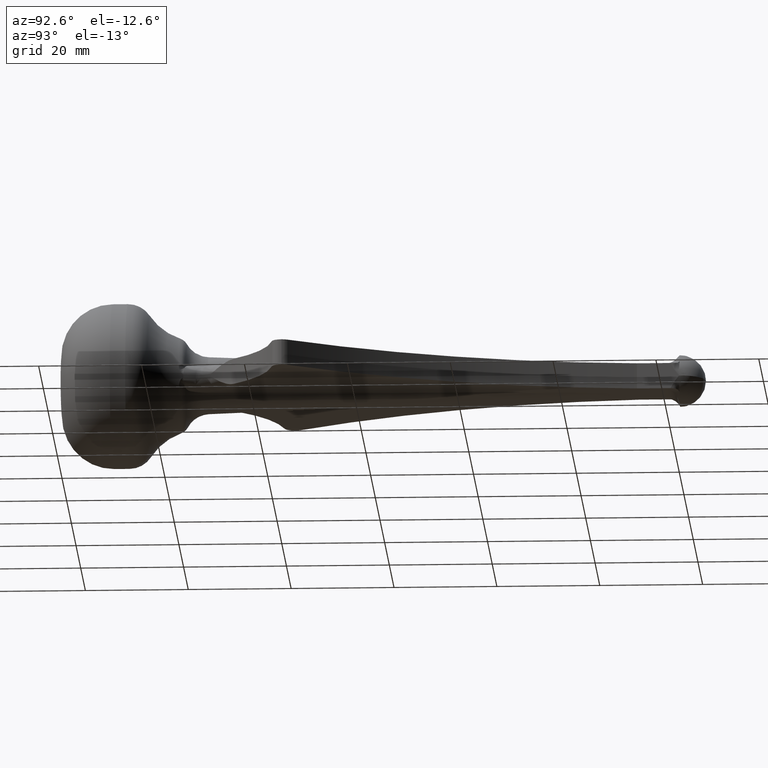
[diagram: clean part render]
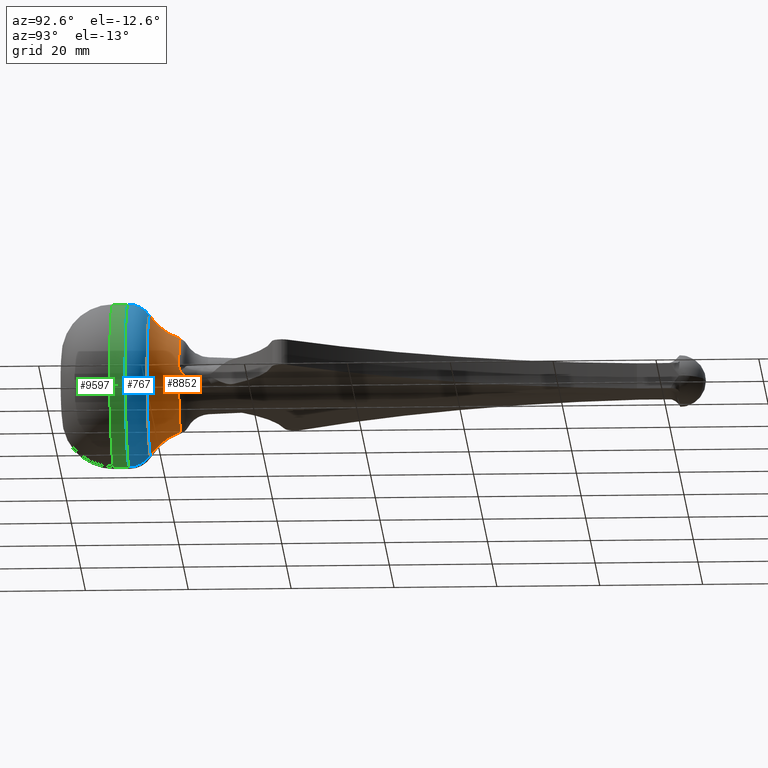
[diagram: same view with three faces highlighted in distinct colors, each labeled with its STEP entity id]
A machine part, auxiliary view with three faces highlighted in distinct colors.
Their STEP definitions:

[orange] entity #8852 — the highlighted toroidal blend (fillet) surface has major radius 20.165 mm and minor (blend) radius 11.5873 mm.
#6 = EDGE_CURVE ( 'NONE', #10651, #2244, #5900, .T. ) ;
#7 = DIRECTION ( 'NONE',  ( 1.000000000000000000, 0.0000000000000000000, -1.224646799147353200E-016 ) ) ;
#28 = ORIENTED_EDGE ( 'NONE', *, *, #3453, .T. ) ;
#55 = CIRCLE ( 'NONE', #10272, 13.76266673960028100 ) ;
#122 = CARTESIAN_POINT ( 'NONE',  ( 8.885873797665523100, 23.08720144099068600, -2.356469528750635000 ) ) ;
#367 = CARTESIAN_POINT ( 'NONE',  ( 8.941719196711911600, 23.90555836322825600, 0.3439355426646191200 ) ) ;
#676 = CIRCLE ( 'NONE', #3830, 11.58731518288763600 ) ;
#693 = CIRCLE ( 'NONE', #1182, 11.58731518288763600 ) ;
#775 = ORIENTED_EDGE ( 'NONE', *, *, #7452, .T. ) ;
#785 = EDGE_CURVE ( 'NONE', #7063, #5216, #55, .T. ) ;
#1182 = AXIS2_PLACEMENT_3D ( 'NONE', #7235, #1813, #8146 ) ;
#1228 = CARTESIAN_POINT ( 'NONE',  ( 8.918659669156037100, 23.99999999999999600, 0.3181611225529120700 ) ) ;
#1270 = CARTESIAN_POINT ( 'NONE',  ( 8.971983921116132500, 23.77932363652176000, 0.4209636316943460900 ) ) ;
#1813 = DIRECTION ( 'NONE',  ( -1.000000000000000000, 0.0000000000000000000, 0.0000000000000000000 ) ) ;
#1970 = DIRECTION ( 'NONE',  ( -0.0000000000000000000, -1.000000000000000000, -0.0000000000000000000 ) ) ;
#2004 = DIRECTION ( 'NONE',  ( 0.0000000000000000000, 0.0000000000000000000, -1.000000000000000000 ) ) ;
#2208 = CARTESIAN_POINT ( 'NONE',  ( 9.012877821960300300, 23.59990351548576400, 0.5915316654796204400 ) ) ;
#2244 = VERTEX_POINT ( 'NONE', #10386 ) ;
#3119 = CARTESIAN_POINT ( 'NONE',  ( 9.056079184509602700, 23.33884154773874900, 1.012000436484756300 ) ) ;
#3397 = CARTESIAN_POINT ( 'NONE',  ( 1.685440577038321800E-015, 17.15495492610014900, 13.76266673960027700 ) ) ;
#3412 = VERTEX_POINT ( 'NONE', #1228 ) ;
#3453 = EDGE_CURVE ( 'NONE', #3412, #3787, #9212, .T. ) ;
#3661 = ORIENTED_EDGE ( 'NONE', *, *, #7736, .T. ) ;
#3748 = EDGE_LOOP ( 'NONE', ( #6827, #7266, #6503, #3661, #11083, #8203, #28, #775 ) ) ;
#3787 = VERTEX_POINT ( 'NONE', #5630 ) ;
#3830 = AXIS2_PLACEMENT_3D ( 'NONE', #5464, #7, #6371 ) ;
#4059 = CARTESIAN_POINT ( 'NONE',  ( 9.033472582357175500, 23.16011975677102800, 1.579945031000917800 ) ) ;
#4252 = EDGE_CURVE ( 'NONE', #2244, #3412, #10546, .T. ) ;
#4284 = AXIS2_PLACEMENT_3D ( 'NONE', #7388, #1970, #8311 ) ;
#4293 = DIRECTION ( 'NONE',  ( -0.0000000000000000000, -1.000000000000000000, -0.0000000000000000000 ) ) ;
#4411 = TOROIDAL_SURFACE ( 'NONE', #10253, 20.16504479100604300, 11.58731518288763600 ) ;
#4466 = AXIS2_PLACEMENT_3D ( 'NONE', #10623, #5458, #11453 ) ;
#4736 = DIRECTION ( 'NONE',  ( -0.0000000000000000000, -1.000000000000000000, -0.0000000000000000000 ) ) ;
#4792 = CARTESIAN_POINT ( 'NONE',  ( 0.0000000000000000000, 17.15495492610014900, -13.76266673960027700 ) ) ;
#4956 = CARTESIAN_POINT ( 'NONE',  ( 8.937033132351908500, 23.08720144099069000, 2.163555771092899900 ) ) ;
#5216 = VERTEX_POINT ( 'NONE', #4792 ) ;
#5236 = CIRCLE ( 'NONE', #4284, 9.193024626746586500 ) ;
#5458 = DIRECTION ( 'NONE',  ( -0.0000000000000000000, -1.000000000000000000, -0.0000000000000000000 ) ) ;
#5464 = CARTESIAN_POINT ( 'NONE',  ( 2.469505755796855800E-015, 26.81287542869572600, 20.16504479100604300 ) ) ;
#5489 = DIRECTION ( 'NONE',  ( 0.0000000000000000000, 0.0000000000000000000, 1.000000000000000000 ) ) ;
#5539 = DIRECTION ( 'NONE',  ( 0.0000000000000000000, 1.000000000000000000, 0.0000000000000000000 ) ) ;
#5541 = CARTESIAN_POINT ( 'NONE',  ( 0.0000000000000000000, 17.15495492610014900, 0.0000000000000000000 ) ) ;
#5630 = CARTESIAN_POINT ( 'NONE',  ( 8.885873797667464700, 23.08720144099065100, 2.356469528743372800 ) ) ;
#5900 = B_SPLINE_CURVE_WITH_KNOTS ( 'NONE', 3,
 ( #8152, #8261, #8377, #8258, #8246, #8234, #8224, #8179, #8190, #8220, #8207, #8108, #8142, #8166 ),
 .UNSPECIFIED., .F., .F.,
 ( 4, 2, 2, 2, 2, 2, 4 ),
 ( 0.0000000000000000000, 0.0005983273841766316500, 0.001196654768353262600, 0.001794982152529893800, 0.002094145844618212100, 0.002243727690662367200, 0.002393309536706522300 ),
 .UNSPECIFIED. ) ;
#6371 = DIRECTION ( 'NONE',  ( -1.224646799147353500E-016, 0.0000000000000000000, -1.000000000000000000 ) ) ;
#6503 = ORIENTED_EDGE ( 'NONE', *, *, #7365, .T. ) ;
#6686 = AXIS2_PLACEMENT_3D ( 'NONE', #9548, #4293, #10364 ) ;
#6730 = CARTESIAN_POINT ( 'NONE',  ( 8.962404263562195400, 23.81956761544567400, 0.3919812710589184500 ) ) ;
#6827 = ORIENTED_EDGE ( 'NONE', *, *, #8652, .F. ) ;
#7063 = VERTEX_POINT ( 'NONE', #3397 ) ;
#7235 = CARTESIAN_POINT ( 'NONE',  ( 0.0000000000000000000, 26.81287542869572600, -20.16504479100604300 ) ) ;
#7266 = ORIENTED_EDGE ( 'NONE', *, *, #785, .T. ) ;
#7365 = EDGE_CURVE ( 'NONE', #5216, #10401, #693, .T. ) ;
#7388 = CARTESIAN_POINT ( 'NONE',  ( 0.0000000000000000000, 23.08720144099065100, 0.0000000000000000000 ) ) ;
#7452 = EDGE_CURVE ( 'NONE', #3787, #10240, #5236, .T. ) ;
#7569 = CARTESIAN_POINT ( 'NONE',  ( 8.930667435074074200, 23.95128460649568700, 0.3235019602229927100 ) ) ;
#7611 = CARTESIAN_POINT ( 'NONE',  ( 8.998337914112205700, 23.66612744645895100, 0.5162185066170290600 ) ) ;
#7736 = EDGE_CURVE ( 'NONE', #10401, #10651, #11024, .T. ) ;
#8108 = CARTESIAN_POINT ( 'NONE',  ( 8.941704535160679900, 23.90561679870687000, -0.3439421123707872600 ) ) ;
#8142 = CARTESIAN_POINT ( 'NONE',  ( 8.930526227416159200, 23.95185641049453900, -0.3234473615455704700 ) ) ;
#8146 = DIRECTION ( 'NONE',  ( 0.0000000000000000000, 0.0000000000000000000, 1.000000000000000000 ) ) ;
#8152 = CARTESIAN_POINT ( 'NONE',  ( 8.885873797665523100, 23.08720144099068600, -2.356469528750635000 ) ) ;
#8166 = CARTESIAN_POINT ( 'NONE',  ( 8.918659669156037100, 23.99999999999999600, -0.3181611225529122900 ) ) ;
#8179 = CARTESIAN_POINT ( 'NONE',  ( 9.012688472108228800, 23.60082714964636400, -0.5903667414277680200 ) ) ;
#8190 = CARTESIAN_POINT ( 'NONE',  ( 8.998147241625924100, 23.66696851101153600, -0.5153878817247501400 ) ) ;
#8203 = ORIENTED_EDGE ( 'NONE', *, *, #4252, .T. ) ;
#8207 = CARTESIAN_POINT ( 'NONE',  ( 8.962236595814626800, 23.82026712639986200, -0.3915515596212859600 ) ) ;
#8220 = CARTESIAN_POINT ( 'NONE',  ( 8.971835888917169700, 23.77994827111262300, -0.4205002900955824300 ) ) ;
#8224 = CARTESIAN_POINT ( 'NONE',  ( 9.046514190846798100, 23.42558539799858900, -0.8309049424322915200 ) ) ;
#8234 = CARTESIAN_POINT ( 'NONE',  ( 9.056069037639268500, 23.33896420935823500, -1.011732576933815900 ) ) ;
#8246 = CARTESIAN_POINT ( 'NONE',  ( 9.049564010375366500, 23.20598295220955300, -1.385902755040101100 ) ) ;
#8258 = CARTESIAN_POINT ( 'NONE',  ( 9.033362387937957600, 23.16006276147027900, -1.580537984538229200 ) ) ;
#8261 = CARTESIAN_POINT ( 'NONE',  ( 8.937036048161090200, 23.08720144099035200, -2.163544776038833600 ) ) ;
#8311 = DIRECTION ( 'NONE',  ( -1.776356839400250500E-015, 0.0000000000000000000, 1.000000000000000000 ) ) ;
#8377 = CARTESIAN_POINT ( 'NONE',  ( 8.977282515049207500, 23.10086973359258200, -1.967824308700696100 ) ) ;
#8516 = CARTESIAN_POINT ( 'NONE',  ( 9.046459984554651600, 23.42575072095533200, 0.8308852427715052200 ) ) ;
#8652 = EDGE_CURVE ( 'NONE', #7063, #10240, #676, .T. ) ;
#8663 = CARTESIAN_POINT ( 'NONE',  ( 0.0000000000000000000, 23.08720144099065100, -9.193024626746586500 ) ) ;
#8852 = ADVANCED_FACE ( 'NONE', ( #11282 ), #4411, .F. ) ;
#9212 = B_SPLINE_CURVE_WITH_KNOTS ( 'NONE', 3,
 ( #9269, #7569, #367, #6730, #1270, #7611, #2208, #8516, #3119, #9334, #4059, #10157, #4956, #10979 ),
 .UNSPECIFIED., .F., .F.,
 ( 4, 2, 2, 2, 2, 2, 4 ),
 ( -1.195679379339184600E-005, 0.0001394139403044374400, 0.0002907846744022667100, 0.0005935261425979253700, 0.001199009078989249800, 0.001804492015380574000, 0.002409974951771898800 ),
 .UNSPECIFIED. ) ;
#9269 = CARTESIAN_POINT ( 'NONE',  ( 8.918659669156037100, 23.99999999999999600, 0.3181611225529120700 ) ) ;
#9334 = CARTESIAN_POINT ( 'NONE',  ( 9.049542421045334400, 23.20587227706673900, 1.386291572264762600 ) ) ;
#9336 = CARTESIAN_POINT ( 'NONE',  ( 1.125820818362799700E-015, 23.08720144099065100, 9.193024626746586500 ) ) ;
#9548 = CARTESIAN_POINT ( 'NONE',  ( 0.0000000000000000000, 23.08720144099065100, 0.0000000000000000000 ) ) ;
#10157 = CARTESIAN_POINT ( 'NONE',  ( 8.976999482468940500, 23.10063048728999700, 1.969610363309829400 ) ) ;
#10240 = VERTEX_POINT ( 'NONE', #9336 ) ;
#10253 = AXIS2_PLACEMENT_3D ( 'NONE', #10774, #4736, #2004 ) ;
#10272 = AXIS2_PLACEMENT_3D ( 'NONE', #5541, #5539, #5489 ) ;
#10364 = DIRECTION ( 'NONE',  ( 0.0000000000000000000, 0.0000000000000000000, 1.000000000000000000 ) ) ;
#10386 = CARTESIAN_POINT ( 'NONE',  ( 8.918659669156037100, 23.99999999999999600, -0.3181611225529122900 ) ) ;
#10401 = VERTEX_POINT ( 'NONE', #8663 ) ;
#10546 = CIRCLE ( 'NONE', #4466, 8.924332848685921200 ) ;
#10623 = CARTESIAN_POINT ( 'NONE',  ( 0.0000000000000000000, 23.99999999999999600, 0.0000000000000000000 ) ) ;
#10651 = VERTEX_POINT ( 'NONE', #122 ) ;
#10774 = CARTESIAN_POINT ( 'NONE',  ( 0.0000000000000000000, 26.81287542869572600, 0.0000000000000000000 ) ) ;
#10979 = CARTESIAN_POINT ( 'NONE',  ( 8.885873797667464700, 23.08720144099065100, 2.356469528743372800 ) ) ;
#11024 = CIRCLE ( 'NONE', #6686, 9.193024626746586500 ) ;
#11083 = ORIENTED_EDGE ( 'NONE', *, *, #6, .T. ) ;
#11282 = FACE_OUTER_BOUND ( 'NONE', #3748, .T. ) ;
#11453 = DIRECTION ( 'NONE',  ( 0.0000000000000000000, 0.0000000000000000000, -1.000000000000000000 ) ) ;

[blue] entity #767 — the highlighted toroidal blend (fillet) surface has major radius 11 mm and minor (blend) radius 5 mm.
#55 = CIRCLE ( 'NONE', #10272, 13.76266673960028100 ) ;
#256 = CIRCLE ( 'NONE', #6619, 4.999999999999999100 ) ;
#336 = CARTESIAN_POINT ( 'NONE',  ( 0.0000000000000000000, 12.98750096883720000, 0.0000000000000000000 ) ) ;
#767 = ADVANCED_FACE ( 'NONE', ( #2502 ), #7298, .T. ) ;
#785 = EDGE_CURVE ( 'NONE', #7063, #5216, #55, .T. ) ;
#860 = CARTESIAN_POINT ( 'NONE',  ( 0.0000000000000000000, 12.98750096883720000, 16.00000000000000000 ) ) ;
#900 = DIRECTION ( 'NONE',  ( -1.000000000000000000, 0.0000000000000000000, 0.0000000000000000000 ) ) ;
#1233 = DIRECTION ( 'NONE',  ( 0.0000000000000000000, 0.0000000000000000000, 1.000000000000000000 ) ) ;
#1329 = ORIENTED_EDGE ( 'NONE', *, *, #9253, .F. ) ;
#2122 = CIRCLE ( 'NONE', #4521, 4.999999999999999100 ) ;
#2293 = CIRCLE ( 'NONE', #2632, 16.00000000000000000 ) ;
#2502 = FACE_OUTER_BOUND ( 'NONE', #7732, .T. ) ;
#2632 = AXIS2_PLACEMENT_3D ( 'NONE', #336, #6692, #1233 ) ;
#3397 = CARTESIAN_POINT ( 'NONE',  ( 1.685440577038321800E-015, 17.15495492610014900, 13.76266673960027700 ) ) ;
#3486 = DIRECTION ( 'NONE',  ( 1.000000000000000000, -0.0000000000000000000, 1.224646799147353200E-016 ) ) ;
#3572 = ORIENTED_EDGE ( 'NONE', *, *, #3931, .F. ) ;
#3931 = EDGE_CURVE ( 'NONE', #10707, #4950, #2293, .T. ) ;
#4521 = AXIS2_PLACEMENT_3D ( 'NONE', #8833, #3486, #9658 ) ;
#4792 = CARTESIAN_POINT ( 'NONE',  ( 0.0000000000000000000, 17.15495492610014900, -13.76266673960027700 ) ) ;
#4846 = CARTESIAN_POINT ( 'NONE',  ( 1.959434878635765100E-015, 12.98750096883720000, -16.00000000000000000 ) ) ;
#4950 = VERTEX_POINT ( 'NONE', #860 ) ;
#5216 = VERTEX_POINT ( 'NONE', #4792 ) ;
#5489 = DIRECTION ( 'NONE',  ( 0.0000000000000000000, 0.0000000000000000000, 1.000000000000000000 ) ) ;
#5539 = DIRECTION ( 'NONE',  ( 0.0000000000000000000, 1.000000000000000000, 0.0000000000000000000 ) ) ;
#5541 = CARTESIAN_POINT ( 'NONE',  ( 0.0000000000000000000, 17.15495492610014900, 0.0000000000000000000 ) ) ;
#5591 = DIRECTION ( 'NONE',  ( 0.0000000000000000000, 0.0000000000000000000, 1.000000000000000000 ) ) ;
#5657 = CARTESIAN_POINT ( 'NONE',  ( 0.0000000000000000000, 12.98750096883720000, 0.0000000000000000000 ) ) ;
#5672 = DIRECTION ( 'NONE',  ( 0.0000000000000000000, 1.000000000000000000, 0.0000000000000000000 ) ) ;
#6349 = CARTESIAN_POINT ( 'NONE',  ( 0.0000000000000000000, 12.98750096883720000, 11.00000000000000900 ) ) ;
#6619 = AXIS2_PLACEMENT_3D ( 'NONE', #6349, #900, #7249 ) ;
#6692 = DIRECTION ( 'NONE',  ( -0.0000000000000000000, -1.000000000000000000, -0.0000000000000000000 ) ) ;
#6897 = ORIENTED_EDGE ( 'NONE', *, *, #785, .F. ) ;
#7063 = VERTEX_POINT ( 'NONE', #3397 ) ;
#7082 = EDGE_CURVE ( 'NONE', #10707, #5216, #2122, .T. ) ;
#7249 = DIRECTION ( 'NONE',  ( 0.0000000000000000000, 0.0000000000000000000, 1.000000000000000000 ) ) ;
#7298 = TOROIDAL_SURFACE ( 'NONE', #11391, 11.00000000000000900, 5.000000000000000000 ) ;
#7732 = EDGE_LOOP ( 'NONE', ( #3572, #8834, #6897, #1329 ) ) ;
#8834 = ORIENTED_EDGE ( 'NONE', *, *, #7082, .T. ) ;
#8833 = CARTESIAN_POINT ( 'NONE',  ( 1.347111479062089600E-015, 12.98750096883720000, -11.00000000000000900 ) ) ;
#9253 = EDGE_CURVE ( 'NONE', #4950, #7063, #256, .T. ) ;
#9658 = DIRECTION ( 'NONE',  ( 1.224646799147353500E-016, 0.0000000000000000000, -1.000000000000000000 ) ) ;
#10272 = AXIS2_PLACEMENT_3D ( 'NONE', #5541, #5539, #5489 ) ;
#10707 = VERTEX_POINT ( 'NONE', #4846 ) ;
#11391 = AXIS2_PLACEMENT_3D ( 'NONE', #5657, #5672, #5591 ) ;

[green] entity #9597 — the highlighted cylindrical surface (partial cylindrical patch) has radius 16 mm, axis along (-0, 1, -0).
#177 = ORIENTED_EDGE ( 'NONE', *, *, #3931, .T. ) ;
#336 = CARTESIAN_POINT ( 'NONE',  ( 0.0000000000000000000, 12.98750096883720000, 0.0000000000000000000 ) ) ;
#508 = CARTESIAN_POINT ( 'NONE',  ( 1.959434878635765100E-015, 10.00000000000000000, -16.00000000000000000 ) ) ;
#860 = CARTESIAN_POINT ( 'NONE',  ( 0.0000000000000000000, 12.98750096883720000, 16.00000000000000000 ) ) ;
#1120 = CARTESIAN_POINT ( 'NONE',  ( 0.0000000000000000000, 0.0000000000000000000, 16.00000000000000000 ) ) ;
#1233 = DIRECTION ( 'NONE',  ( 0.0000000000000000000, 0.0000000000000000000, 1.000000000000000000 ) ) ;
#1239 = CARTESIAN_POINT ( 'NONE',  ( 0.0000000000000000000, 0.0000000000000000000, 0.0000000000000000000 ) ) ;
#1373 = VECTOR ( 'NONE', #7467, 1000.000000000000000 ) ;
#1670 = LINE ( 'NONE', #1120, #1373 ) ;
#2033 = ORIENTED_EDGE ( 'NONE', *, *, #10126, .F. ) ;
#2086 = VERTEX_POINT ( 'NONE', #508 ) ;
#2129 = CARTESIAN_POINT ( 'NONE',  ( 1.959434878635765100E-015, 0.0000000000000000000, -16.00000000000000000 ) ) ;
#2281 = VECTOR ( 'NONE', #3980, 1000.000000000000000 ) ;
#2293 = CIRCLE ( 'NONE', #2632, 16.00000000000000000 ) ;
#2632 = AXIS2_PLACEMENT_3D ( 'NONE', #336, #6692, #1233 ) ;
#3378 = EDGE_CURVE ( 'NONE', #2086, #10707, #4726, .T. ) ;
#3931 = EDGE_CURVE ( 'NONE', #10707, #4950, #2293, .T. ) ;
#3980 = DIRECTION ( 'NONE',  ( -0.0000000000000000000, 1.000000000000000000, -0.0000000000000000000 ) ) ;
#4218 = VERTEX_POINT ( 'NONE', #7774 ) ;
#4726 = LINE ( 'NONE', #2129, #2281 ) ;
#4829 = CIRCLE ( 'NONE', #7538, 16.00000000000000000 ) ;
#4846 = CARTESIAN_POINT ( 'NONE',  ( 1.959434878635765100E-015, 12.98750096883720000, -16.00000000000000000 ) ) ;
#4866 = DIRECTION ( 'NONE',  ( -0.0000000000000000000, 1.000000000000000000, -0.0000000000000000000 ) ) ;
#4950 = VERTEX_POINT ( 'NONE', #860 ) ;
#5360 = EDGE_LOOP ( 'NONE', ( #6133, #6968, #177, #2033 ) ) ;
#5383 = DIRECTION ( 'NONE',  ( -0.0000000000000000000, 1.000000000000000000, -0.0000000000000000000 ) ) ;
#6133 = ORIENTED_EDGE ( 'NONE', *, *, #10555, .T. ) ;
#6692 = DIRECTION ( 'NONE',  ( -0.0000000000000000000, -1.000000000000000000, -0.0000000000000000000 ) ) ;
#6968 = ORIENTED_EDGE ( 'NONE', *, *, #3378, .T. ) ;
#7467 = DIRECTION ( 'NONE',  ( -0.0000000000000000000, 1.000000000000000000, -0.0000000000000000000 ) ) ;
#7538 = AXIS2_PLACEMENT_3D ( 'NONE', #10553, #5383, #11385 ) ;
#7577 = DIRECTION ( 'NONE',  ( 0.0000000000000000000, 0.0000000000000000000, 1.000000000000000000 ) ) ;
#7774 = CARTESIAN_POINT ( 'NONE',  ( 0.0000000000000000000, 10.00000000000000000, 16.00000000000000000 ) ) ;
#9597 = ADVANCED_FACE ( 'NONE', ( #10645 ), #10374, .T. ) ;
#10062 = AXIS2_PLACEMENT_3D ( 'NONE', #1239, #4866, #7577 ) ;
#10126 = EDGE_CURVE ( 'NONE', #4218, #4950, #1670, .T. ) ;
#10374 = CYLINDRICAL_SURFACE ( 'NONE', #10062, 16.00000000000000000 ) ;
#10553 = CARTESIAN_POINT ( 'NONE',  ( 0.0000000000000000000, 10.00000000000000000, 0.0000000000000000000 ) ) ;
#10555 = EDGE_CURVE ( 'NONE', #4218, #2086, #4829, .T. ) ;
#10645 = FACE_OUTER_BOUND ( 'NONE', #5360, .T. ) ;
#10707 = VERTEX_POINT ( 'NONE', #4846 ) ;
#11385 = DIRECTION ( 'NONE',  ( 0.0000000000000000000, 0.0000000000000000000, -1.000000000000000000 ) ) ;